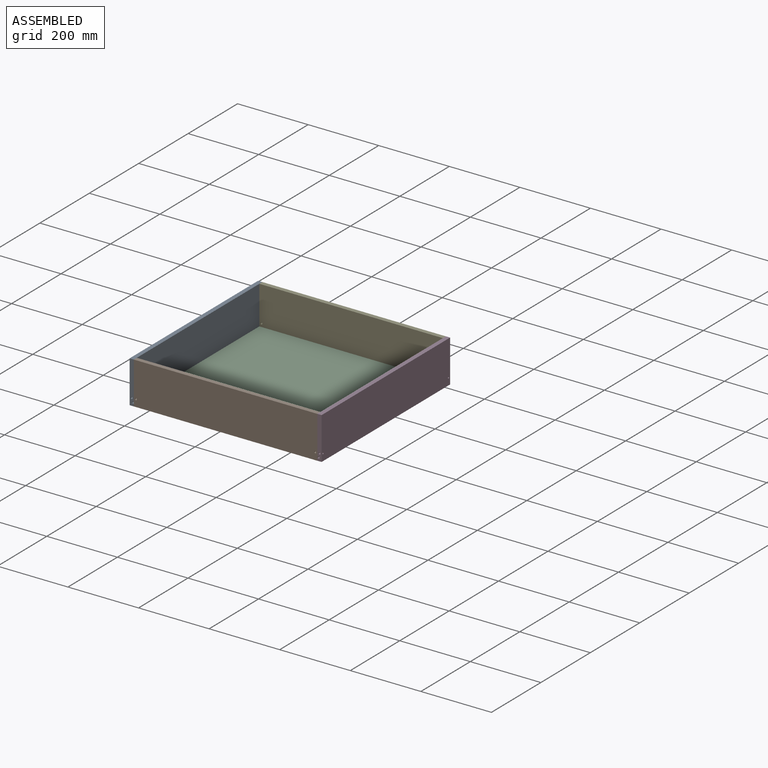
[diagram: assembled view]
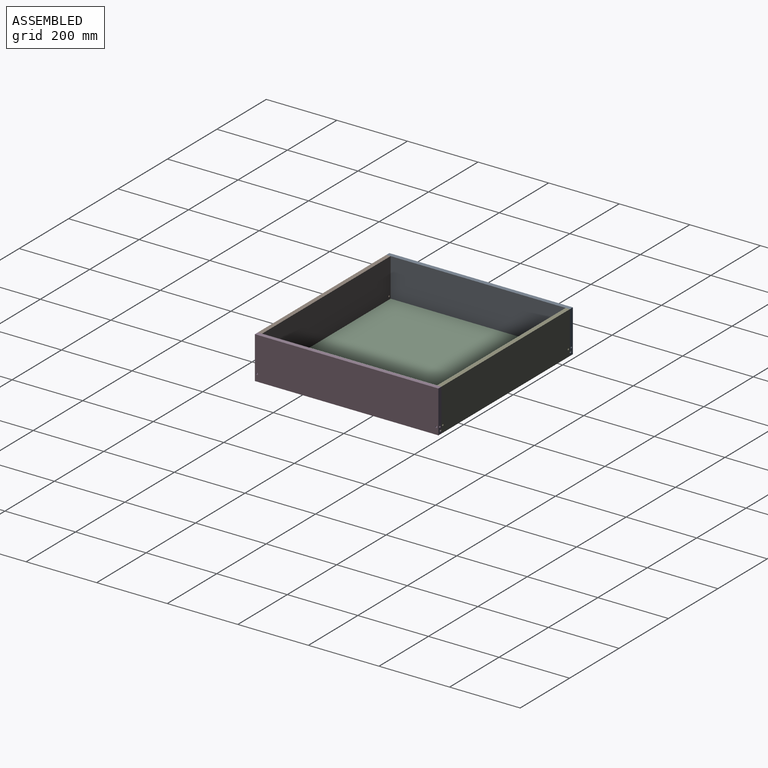
[diagram: assembled view, second angle]
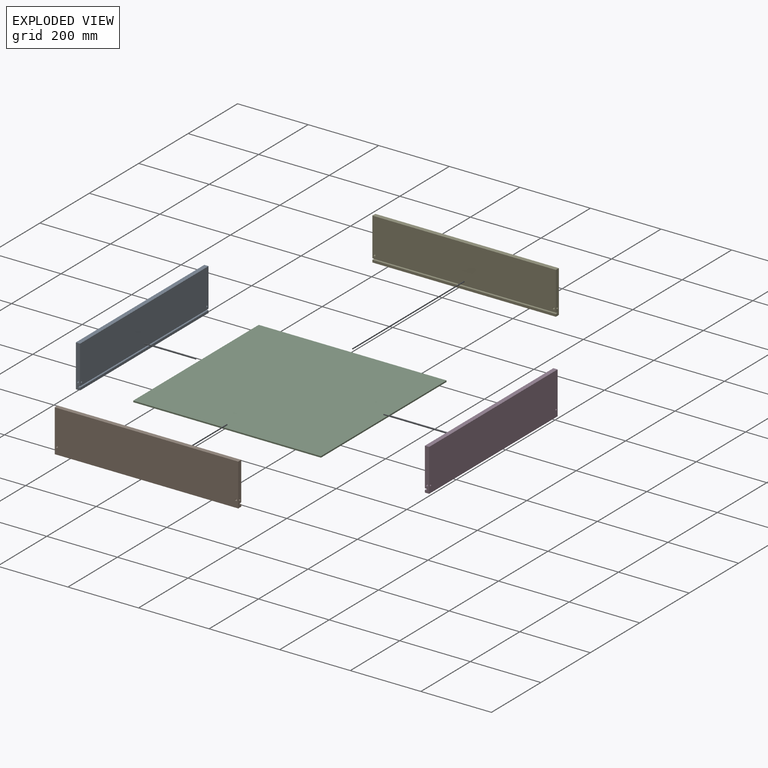
[diagram: exploded view]
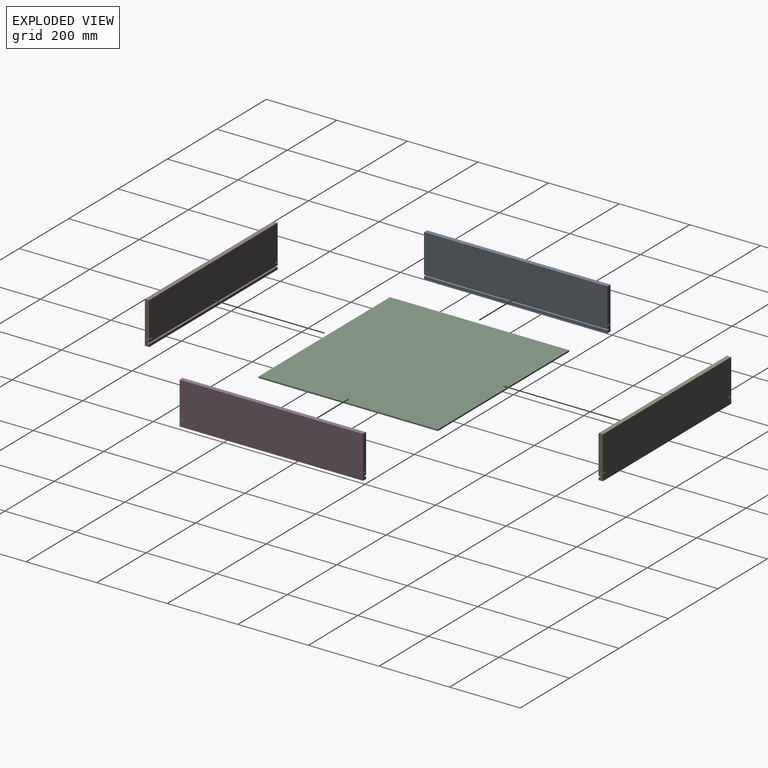
[diagram: exploded view, second angle]
ASSEMBLY  parts=5 mates=4
PART A: 17 faces, bbox 12x520x120 mm
  f0: cylinder r=2.5mm len=508mm, axis (0,-1,0), area 7929.6mm2, adj f13,f14,f15,f16
  f1: cylinder r=2.5mm len=6mm, axis (0,-1,0), area 69.2mm2, adj f12,f15,f16
  f2: cylinder r=2.5mm len=6mm, axis (0,-1,0), area 69.2mm2, adj f11,f13,f14
  f3: plane 520x120mm, normal (-1,0,0), area 62360.7mm2, adj f4,f10,f11,f12,f14,f16
  f4: plane 520x12mm, normal (0,0,-1), area 6240mm2, adj f3,f5,f11,f12
  f5: plane 520x7mm, normal (1,0,0), area 3640mm2, adj f4,f6,f11,f12
  f6: plane 520x6mm, normal (0,0,1), area 3120mm2, adj f5,f7,f11,f12
  f7: plane 520x4mm, normal (1,0,0), area 2080mm2, adj f6,f8,f11,f12
  f8: plane 520x6mm, normal (0,0,-1), area 3120mm2, adj f7,f9,f11,f12
  f9: plane 520x109mm, normal (1,0,0), area 56640.7mm2, adj f8,f10,f11,f12,f13,f15
  f10: plane 520x12mm, normal (0,0,1), area 6240mm2, adj f3,f9,f11,f12
  f11: plane 120x12mm, normal (0,-1,0), area 1396.4mm2, adj f2,f3,f4,f5,f6,f7,f8,f9
  f12: plane 120x12mm, normal (0,1,0), area 1396.4mm2, adj f1,f3,f4,f5,f6,f7,f8,f9
  f13: cylinder r=2.5mm len=6mm, axis (1,0,0), area 69.2mm2, adj f0,f2,f9
  f14: cylinder r=2.5mm len=6mm, axis (1,0,0), area 69.2mm2, adj f0,f2,f3
  f15: cylinder r=2.5mm len=6mm, axis (1,0,0), area 69.2mm2, adj f0,f1,f9
  f16: cylinder r=2.5mm len=6mm, axis (1,0,0), area 69.2mm2, adj f0,f1,f3
PART B: same geometry as A
PART C: 6 faces, bbox 532x508x4 mm
  f0: plane 532x4mm, normal (0,1,0), area 2128mm2, adj f1,f3,f4,f5
  f1: plane 508x4mm, normal (-1,0,0), area 2032mm2, adj f0,f2,f4,f5
  f2: plane 532x4mm, normal (0,-1,0), area 2128mm2, adj f1,f3,f4,f5
  f3: plane 508x4mm, normal (1,0,0), area 2032mm2, adj f0,f2,f4,f5
  f4: plane 532x508mm, normal (0,0,1), area 270256mm2, adj f0,f1,f2,f3
  f5: plane 532x508mm, normal (0,0,-1), area 270256mm2, adj f0,f1,f2,f3
PART D: same geometry as A
PART E: same geometry as A
PLACE A at identity fixed
PLACE B rot(axis=(0,0,1),90deg) t=(-29.46,-478.54,0)mm
PLACE C rot(axis=(1,0,0),180deg) t=(225.9,-258.17,-4.94)mm
PLACE D rot(axis=(0,0,1),180deg) t=(461.09,-520,0)mm
PLACE E rot(axis=(0,0,-1),90deg) t=(490.54,-41.46,0)mm
MATE fastened C.f2 <-> E.f7  axis (0,1,0) through (230.54,-6,-6.94)mm
MATE fastened A.f15 <-> E.f0  axis (1,0,0) through (-29.46,-6,4.06)mm
MATE fastened B.f0 <-> D.f15  axis (1,0,0) through (490.54,-514,4.06)mm
MATE fastened E.f0 <-> D.f13  axis (1,0,0) through (490.54,-6,4.06)mm
